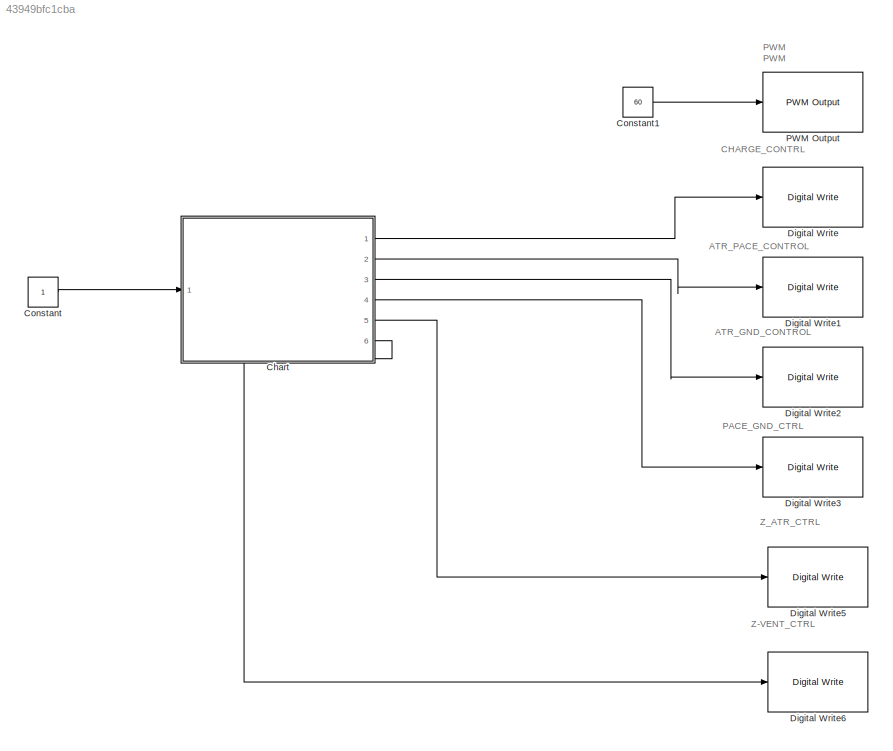
MODEL slx_43949bfc1cba
KIND model
CONFIG AbsTol = auto
CONFIG EnableMultiTasking = on
CONFIG FixedStep = 1e-3
CONFIG MaxStep = auto
CONFIG MinStep = auto
CONFIG RelTol = 1e-3
CONFIG SampleTimeConstraint = Unconstrained
CONFIG Solver = FixedStepAuto
CONFIG SolverName = FixedStepAuto
CONFIG StartTime = 0.0
CONFIG StopTime = 10.0
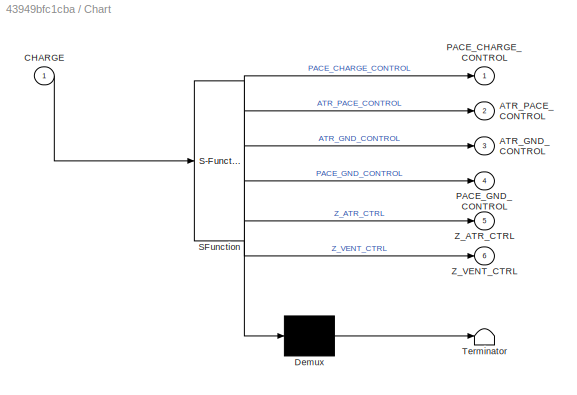
BLOCK [SubSystem] Chart
  ErrorFcn = Stateflow.Translate.translate
  PermitHierarchicalResolution = ExplicitOnly
  Ports = [1, 6]
  RequestExecContextInheritance = off
  SFBlockType = Chart
  TreatAsAtomicUnit = on
BLOCK [Demux] Chart/ Demux 
  Outputs = 1
  Ports = [1, 1]
BLOCK [S-Function] Chart/ SFunction 
  EnableBusSupport = on
  FunctionName = sf_sfun
  PortCounts = [1 7]
  Ports = [1, 7]
  SFcnIsStateOwnerBlock = off
  SFunctionDeploymentMode = off
  Tag = Stateflow S-Function 3
BLOCK [Terminator] Chart/ Terminator 
BLOCK [Outport] Chart/ATR_GND_CONTROL
  Port = 3
BLOCK [Outport] Chart/ATR_PACE_CONTROL
  Port = 2
BLOCK [Inport] Chart/CHARGE
BLOCK [Outport] Chart/PACE_CHARGE_CONTROL
BLOCK [Outport] Chart/PACE_GND_CONTROL
  Port = 4
BLOCK [Outport] Chart/Z_ATR_CTRL
  Port = 5
BLOCK [Outport] Chart/Z_VENT_CTRL
  Port = 6
BLOCK [Constant] Constant
  OutDataTypeStr = boolean
BLOCK [Constant] Constant1
  OutDataTypeStr = double
  Value = 60
BLOCK [Reference] Digital Write  REF=frdmk64flib/Digital Write
  Ports = [1]
  SourceBlock = frdmk64flib/Digital Write
  SourceProductBaseCode = EC_FRDM_K64F
  SourceType = freedomk64f.DigitalWrite
BLOCK [Reference] Digital Write1  REF=frdmk64flib/Digital Write
  Ports = [1]
  SourceBlock = frdmk64flib/Digital Write
  SourceProductBaseCode = EC_FRDM_K64F
  SourceType = freedomk64f.DigitalWrite
BLOCK [Reference] Digital Write2  REF=frdmk64flib/Digital Write
  Ports = [1]
  SourceBlock = frdmk64flib/Digital Write
  SourceProductBaseCode = EC_FRDM_K64F
  SourceType = freedomk64f.DigitalWrite
BLOCK [Reference] Digital Write3  REF=frdmk64flib/Digital Write
  Ports = [1]
  SourceBlock = frdmk64flib/Digital Write
  SourceProductBaseCode = EC_FRDM_K64F
  SourceType = freedomk64f.DigitalWrite
BLOCK [Reference] Digital Write5  REF=frdmk64flib/Digital Write
  Ports = [1]
  SourceBlock = frdmk64flib/Digital Write
  SourceProductBaseCode = EC_FRDM_K64F
  SourceType = freedomk64f.DigitalWrite
BLOCK [Reference] Digital Write6  REF=frdmk64flib/Digital Write
  Ports = [1]
  SourceBlock = frdmk64flib/Digital Write
  SourceProductBaseCode = EC_FRDM_K64F
  SourceType = freedomk64f.DigitalWrite
BLOCK [Reference] PWM Output  REF=frdmk64flib/PWM Output
  Ports = [1]
  SourceBlock = frdmk64flib/PWM Output
  SourceProductBaseCode = EC_FRDM_K64F
  SourceType = freedomk64f.PWMOutput
ANNOTATION (root): ATR_GND_CONTROL
ANNOTATION (root): ATR_PACE_CONTROL
ANNOTATION (root): CHARGE_CONTRL
ANNOTATION (root): PACE_GND_CTRL
ANNOTATION (root): PWM
ANNOTATION (root): Z-VENT_CTRL
ANNOTATION (root): Z_ATR_CTRL
LINE Chart:1 -> Digital Write:1
LINE Chart:2 -> Digital Write1:1
LINE Chart:3 -> Digital Write2:1
LINE Chart:4 -> Digital Write3:1
LINE Chart:5 -> Digital Write5:1
LINE Chart:6 -> Digital Write6:1
LINE Constant1:1 -> PWM Output:1
LINE Constant:1 -> Chart:1
CHART Chart states=7 transitions=6
  STATE_LABEL 'CHARGE\n'
  STATE_LABEL 'Initiallizing\nentry:\nATR_GND_CONTROL= false;\nPACE_CHARGE_CONTROL= false;\nZ_ATR_CTRL = false;\nZ_VENT_CTRL = false;'
  STATE_LABEL 'PACE_CONTROL\nentry:\nPACE_CHARGE_CONTROL= true;'
  STATE_LABEL 'ATR_PACE\nentry:\nATR_PACE_CONTROL = true;\nPACE_GND_CONTROL= true;'
  STATE_LABEL ' capaitor charged\n'
  STATE_LABEL 'PACE COMPLETE'
  STATE_LABEL 'Discharge\nentry:\nATR_GND_CONTROL = true;'
CHART  states=0 transitions=0
